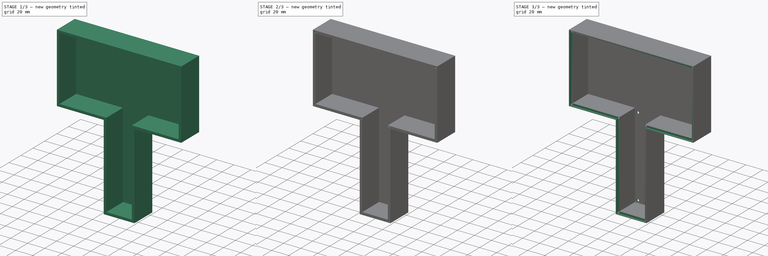
[diagram: build sequence overview — one tinted view per stage of 3, left to right]
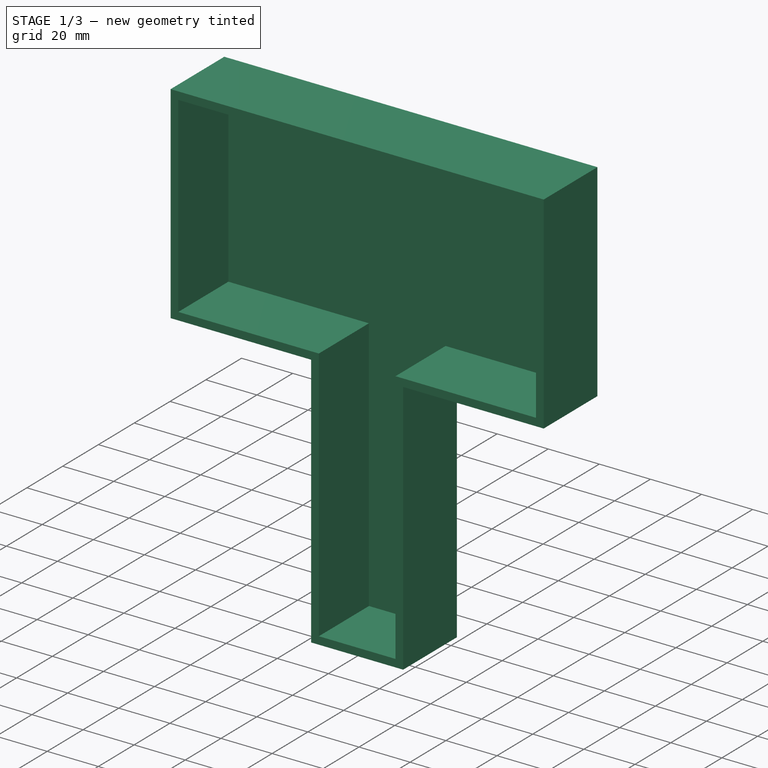
[diagram: stage 1 of 3 — iso view after this stage's code; geometry added in this stage tinted green]
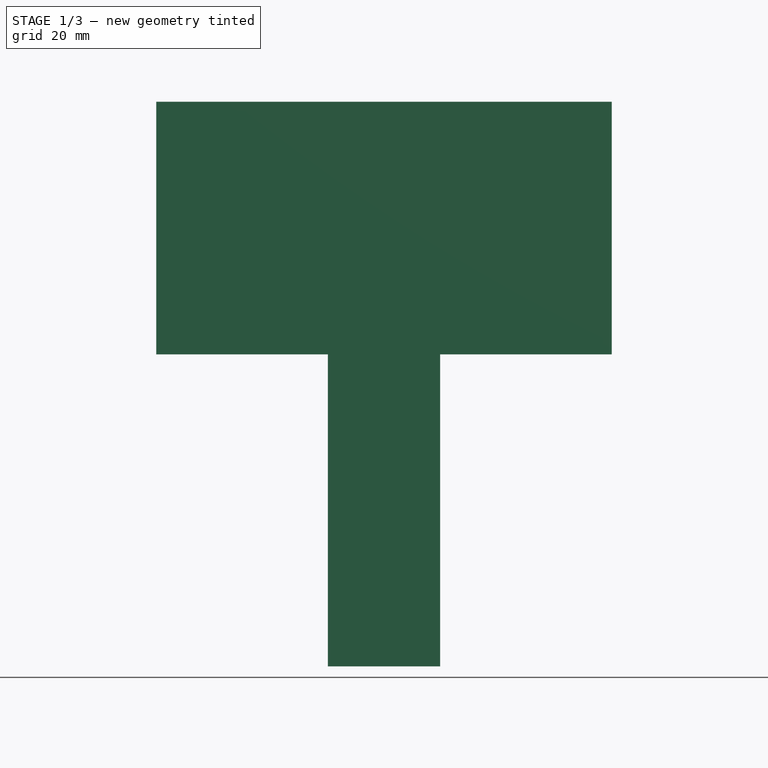
[diagram: stage 1 of 3 — front view after this stage's code; geometry added in this stage tinted green]
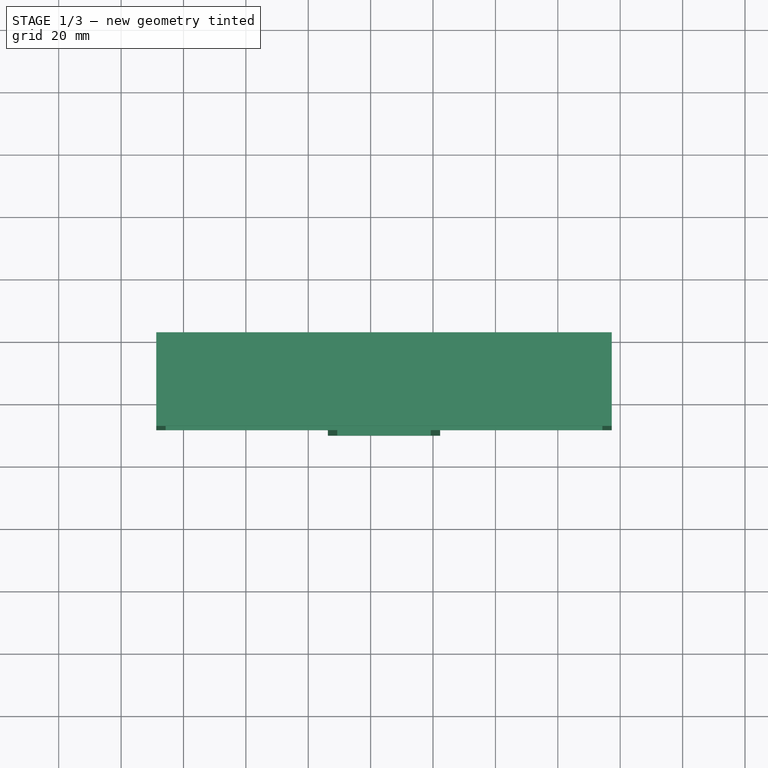
[diagram: stage 1 of 3 — top view after this stage's code; geometry added in this stage tinted green]
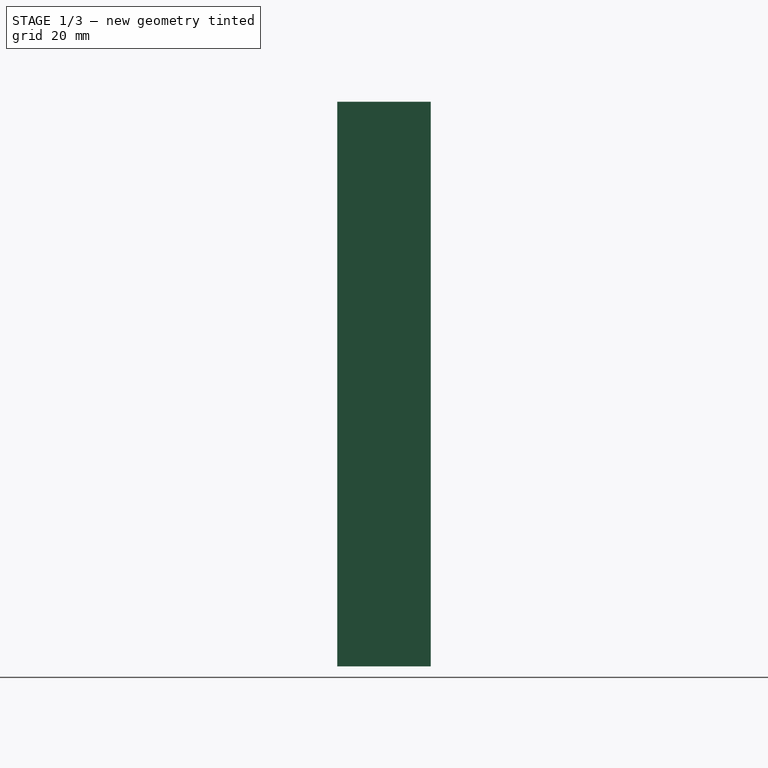
[diagram: stage 1 of 3 — right view after this stage's code; geometry added in this stage tinted green]
FCSTD DOCUMENT  (FreeCAD 0.20R29603 (Git))
Label: FJDI;F
License: All rights reserved
LicenseURL: http://en.wikipedia.org/wiki/All_rights_reserved
objects: Sketcher::SketchObject×5, PartDesign::Pocket×4, PartDesign::Pad×1, PartDesign::Body×1
note: 16 computed .brp shape members not serialized (recipe doc carries the construction recipe); baked Part::Feature solids carry a one-line shape summary decoded from their .brp

FEATURE [Sketcher::SketchObject] Sketch
  FullyConstrained = true
  MapMode = 5
  Placement = pos=(0,0,0) rot=(1,0,0;1.5708rad)
  Support = -> [XZ_Plane]
  sketch-geometry (8):
    g0: LineSegment StartX=-68.72 StartY=55.88 StartZ=0 EndX=-68.72 EndY=-25.12 EndZ=0
    g1: LineSegment StartX=-68.72 StartY=-25.12 StartZ=0 EndX=-13.72 EndY=-25.12 EndZ=0
    g2: LineSegment StartX=-13.72 StartY=-25.12 StartZ=0 EndX=-13.72 EndY=-125.12 EndZ=0
    g3: LineSegment StartX=-13.72 StartY=-125.12 StartZ=0 EndX=22.28 EndY=-125.12 EndZ=0
    g4: LineSegment StartX=22.28 StartY=-125.12 StartZ=0 EndX=22.28 EndY=-25.12 EndZ=0
    g5: LineSegment StartX=22.28 StartY=-25.12 StartZ=0 EndX=77.28 EndY=-25.12 EndZ=0
    g6: LineSegment StartX=77.28 StartY=-25.12 StartZ=0 EndX=77.28 EndY=55.88 EndZ=0
    g7: LineSegment StartX=77.28 StartY=55.88 StartZ=0 EndX=-68.72 EndY=55.88 EndZ=0
  constraints (24):
    c: Vertical(g0)
    c: Coincident(g1,g0)
    c: Horizontal(g1)
    c: Coincident(g2,g1)
    c: Vertical(g2)
    c: Coincident(g3,g2)
    c: Horizontal(g3)
    c: Coincident(g4,g3)
    c: Vertical(g4)
    c: Coincident(g5,g4)
    c: Horizontal(g5)
    c: Coincident(g6,g5)
    c: Vertical(g6)
    c: Coincident(g7,g6)
    c: Coincident(g7,g0)
    c: Horizontal(g7)
    c: DistanceX(g7,g7) = 146
    c: DistanceY(g0,g0) = 81
    c: DistanceY(g6,g6) = 81
    c: DistanceY(g4,g4) = 100
    c: DistanceX(g3,g3) = 36
    c: DistanceX(g1,g1) = 55
    c: DistanceY(g-1,g6) = 55.88
    c: DistanceX(g-1,g5) = 77.28
FEATURE [PartDesign::Pad] Pad
  Direction = (0,-1,2e-16)
  Length = 30
  Length2 = 10
  Placement = pos=(0,0,0) rot=(1,0,0;1.5708rad)
  Profile = -> Sketch
  ReferenceAxis = -> Sketch [N_Axis]
  Type = 0
FEATURE [Sketcher::SketchObject] Sketch001
  ExternalGeometry = -> [Pad]
  FullyConstrained = true
  MapMode = 5
  Placement = pos=(0,-30,6.7e-15) rot=(1,0,0;1.5708rad)
  Support = -> [Pad]
  sketch-geometry (8):
    g0: LineSegment StartX=-65.72 StartY=52.88 StartZ=0 EndX=-65.72 EndY=-22.12 EndZ=0
    g1: LineSegment StartX=-65.72 StartY=-22.12 StartZ=0 EndX=-10.72 EndY=-22.12 EndZ=0
    g2: LineSegment StartX=-10.72 StartY=-22.12 StartZ=0 EndX=-10.72 EndY=-122.12 EndZ=0
    g3: LineSegment StartX=-10.72 StartY=-122.12 StartZ=0 EndX=19.28 EndY=-122.12 EndZ=0
    g4: LineSegment StartX=19.28 StartY=-122.12 StartZ=0 EndX=19.28 EndY=-22.12 EndZ=0
    g5: LineSegment StartX=19.28 StartY=-22.12 StartZ=0 EndX=74.28 EndY=-22.12 EndZ=0
    g6: LineSegment StartX=74.28 StartY=-22.12 StartZ=0 EndX=74.28 EndY=52.88 EndZ=0
    g7: LineSegment StartX=74.28 StartY=52.88 StartZ=0 EndX=-65.72 EndY=52.88 EndZ=0
  constraints (24):
    c: Vertical(g0)
    c: Coincident(g1,g0)
    c: Horizontal(g1)
    c: Coincident(g2,g1)
    c: Vertical(g2)
    c: Coincident(g3,g2)
    c: Horizontal(g3)
    c: Coincident(g4,g3)
    c: Vertical(g4)
    c: Coincident(g5,g4)
    c: Horizontal(g5)
    c: Coincident(g6,g5)
    c: Vertical(g6)
    c: Coincident(g7,g6)
    c: Coincident(g7,g0)
    c: Horizontal(g7)
    c: DistanceX(g6,g-3) = 3
    c: DistanceX(g-3,g0) = 3
    c: DistanceX(g-5,g1) = 3
    c: DistanceX(g4,g-4) = 3
    c: DistanceY(g-6,g3) = 3
    c: DistanceY(g-4,g4) = 3
    c: DistanceY(g-5,g1) = 3
    c: DistanceY(g6,g-3) = 3
FEATURE [Sketcher::SketchObject] Sketch002
  ExternalGeometry = -> [Pad,Sketch001]
  FullyConstrained = true
  MapMode = 5
  Placement = pos=(0,-30,6.7e-15) rot=(1,0,0;1.5708rad)
  Support = -> [Pad]
  sketch-geometry (8):
    g0: Circle CenterX=-11.82 CenterY=-23.22 CenterZ=0 NormalX=0 NormalY=0 NormalZ=1 AngleXU=0 Radius=1
    g1: Circle CenterX=-11.72 CenterY=-123.12 CenterZ=0 NormalX=0 NormalY=0 NormalZ=1 AngleXU=0 Radius=1
    g2: Circle CenterX=20.38 CenterY=-23.22 CenterZ=0 NormalX=0 NormalY=0 NormalZ=1 AngleXU=0 Radius=1
    g3: Circle CenterX=20.28 CenterY=-123.12 CenterZ=0 NormalX=0 NormalY=0 NormalZ=1 AngleXU=0 Radius=1
    g4: Circle CenterX=-66.72 CenterY=-23.12 CenterZ=0 NormalX=0 NormalY=0 NormalZ=1 AngleXU=0 Radius=1
    g5: Circle CenterX=75.28 CenterY=-23.12 CenterZ=0 NormalX=0 NormalY=0 NormalZ=1 AngleXU=0 Radius=1
    g6: Circle CenterX=75.28 CenterY=53.88 CenterZ=0 NormalX=0 NormalY=0 NormalZ=1 AngleXU=0 Radius=1
    g7: Circle CenterX=-66.72 CenterY=53.88 CenterZ=0 NormalX=0 NormalY=0 NormalZ=1 AngleXU=0 Radius=1
  constraints (24):
    c: Diameter(g0) = 2
    c: Diameter(g7) = 2
    c: Diameter(g4) = 2
    c: Diameter(g2) = 2
    c: Diameter(g1) = 2
    c: Diameter(g3) = 2
    c: Diameter(g5) = 2
    c: Diameter(g6) = 2
    c: DistanceY(g1,g-13) = 1
    c: DistanceX(g-7,g1) = 2
    c: DistanceX(g3,g-6) = 2
    c: DistanceY(g3,g-13) = 1
    c: DistanceY(g2,g-12) = 1.1
    c: DistanceX(g-12,g2) = 1.1
    c: DistanceY(g-5,g5) = 2
    c: DistanceY(g6,g-4) = 2
    c: DistanceX(g6,g-4) = 2
    c: DistanceX(g-8,g7) = 2
    c: DistanceY(g7,g-8) = 2
    c: DistanceY(g-8,g4) = 2
    c: DistanceX(g-8,g4) = 2
    c: DistanceX(g5,g-5) = 2
    c: DistanceX(g-7,g0) = 1.9
    c: DistanceY(g-7,g0) = 1.9
FEATURE [PartDesign::Pocket] Pocket
  BaseFeature = -> Pad
  Direction = (0,1,-2e-16)
  Length = 28
  Length2 = 5
  Placement = pos=(0,0,0) rot=(1,0,0;1.5708rad)
  Profile = -> Sketch001
  ReferenceAxis = -> Sketch001 [N_Axis]
  Type = 0
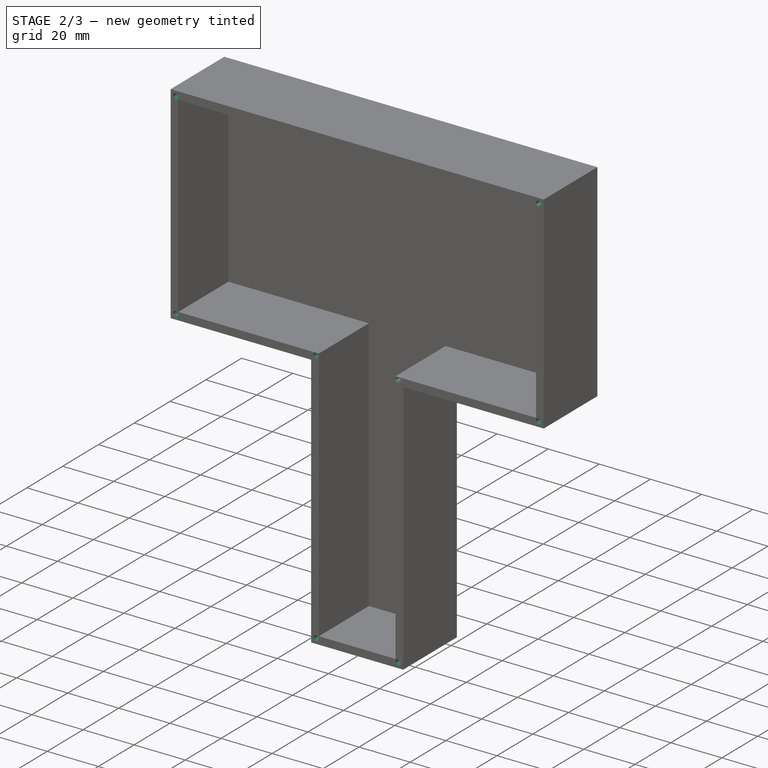
[diagram: stage 2 of 3 — iso view after this stage's code; geometry added in this stage tinted green]
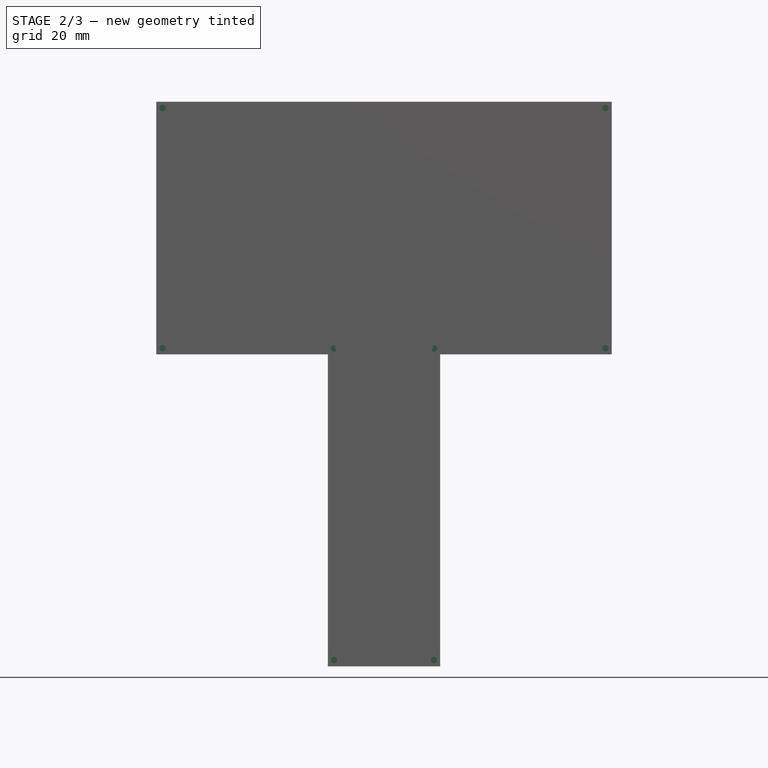
[diagram: stage 2 of 3 — front view after this stage's code; geometry added in this stage tinted green]
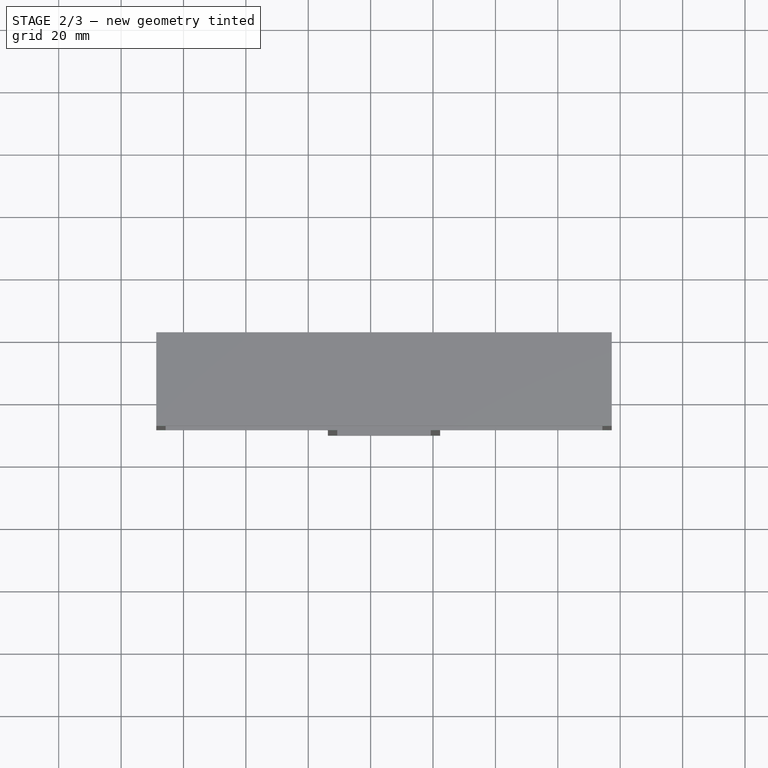
[diagram: stage 2 of 3 — top view after this stage's code; geometry added in this stage tinted green]
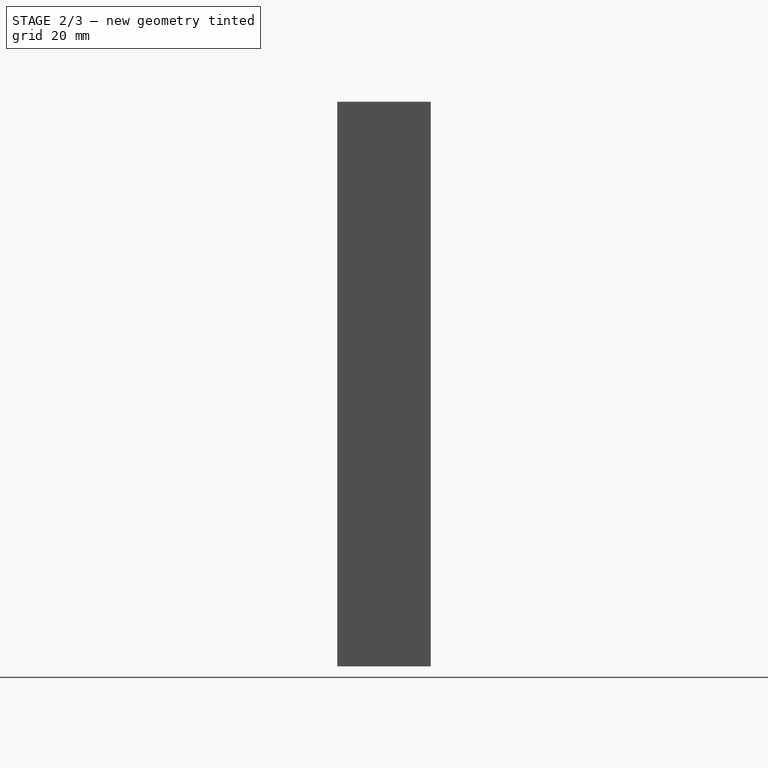
[diagram: stage 2 of 3 — right view after this stage's code; geometry added in this stage tinted green]
FEATURE [PartDesign::Pocket] Pocket001
  BaseFeature = -> Pocket
  Direction = (0,1,-2e-16)
  Length = 5
  Length2 = 5
  Placement = pos=(0,0,0) rot=(1,0,0;1.5708rad)
  Profile = -> Sketch002
  ReferenceAxis = -> Sketch002 [N_Axis]
  Type = 0
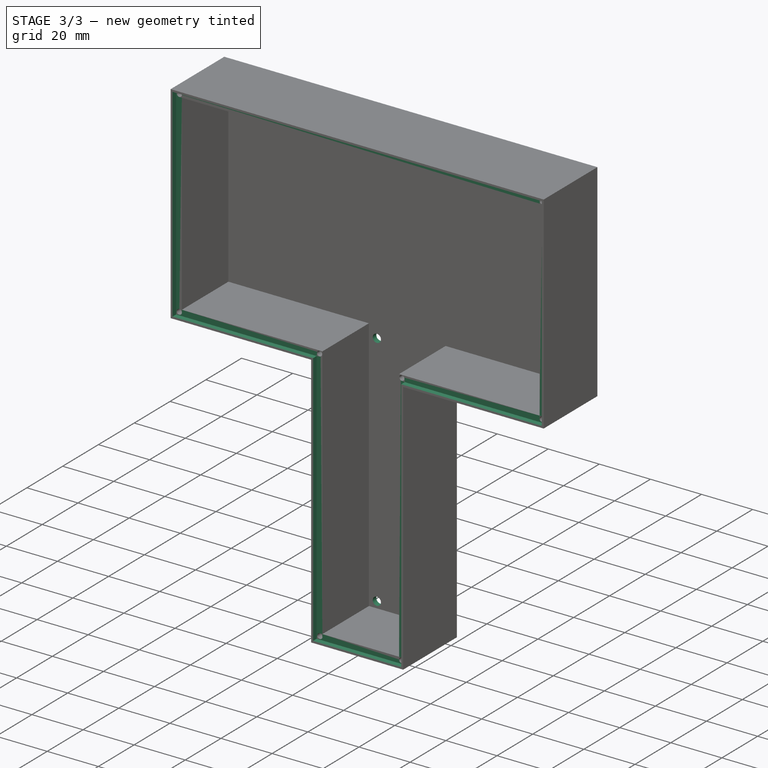
[diagram: stage 3 of 3 — iso view after this stage's code; geometry added in this stage tinted green]
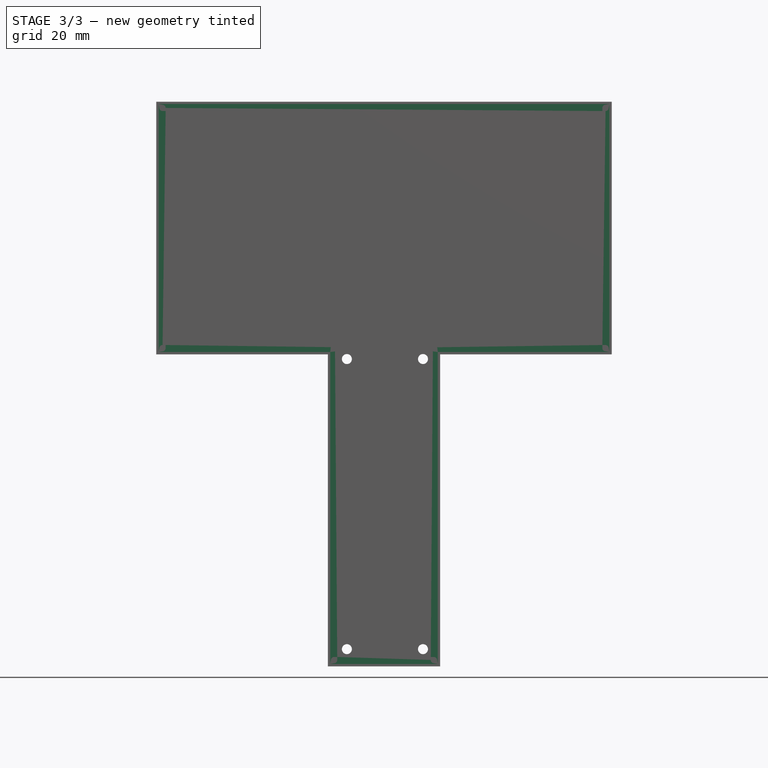
[diagram: stage 3 of 3 — front view after this stage's code; geometry added in this stage tinted green]
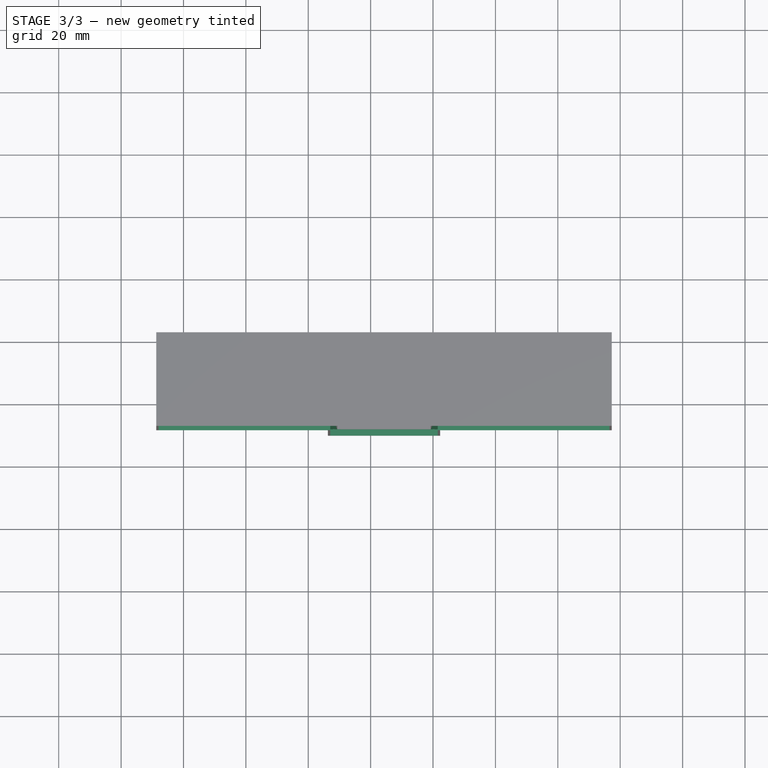
[diagram: stage 3 of 3 — top view after this stage's code; geometry added in this stage tinted green]
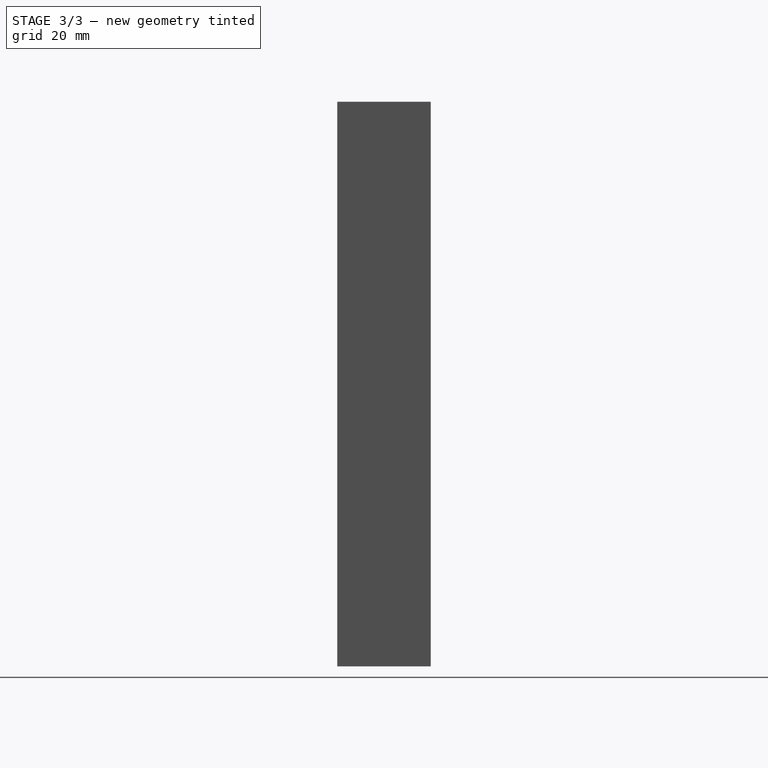
[diagram: stage 3 of 3 — right view after this stage's code; geometry added in this stage tinted green]
FEATURE [Sketcher::SketchObject] Sketch003
  ExternalGeometry = -> [Pocket001]
  FullyConstrained = true
  MapMode = 5
  Placement = pos=(0,-2,4e-16) rot=(1,0,0;1.5708rad)
  Support = -> [Pocket001]
  sketch-geometry (4):
    g0: Circle CenterX=-7.62 CenterY=-119.62 CenterZ=0 NormalX=0 NormalY=0 NormalZ=1 AngleXU=0 Radius=1.6
    g1: Circle CenterX=16.78 CenterY=-119.62 CenterZ=0 NormalX=0 NormalY=0 NormalZ=1 AngleXU=0 Radius=1.6
    g2: Circle CenterX=-7.62 CenterY=-26.62 CenterZ=0 NormalX=0 NormalY=0 NormalZ=1 AngleXU=0 Radius=1.6
    g3: Circle CenterX=16.78 CenterY=-26.62 CenterZ=0 NormalX=0 NormalY=0 NormalZ=1 AngleXU=0 Radius=1.6
  constraints (12):
    c: DistanceX(g3,g1) = 0
    c: DistanceY(g3,g2) = 0
    c: DistanceX(g0,g1) = 24.4
    c: DistanceX(g2,g3) = 24.4
    c: DistanceY(g0,g2) = 93
    c: DistanceY(g1,g3) = 93
    c: Diameter(g3) = 3.2
    c: Diameter(g2) = 3.2
    c: Diameter(g1) = 3.2
    c: Diameter(g0) = 3.2
    c: DistanceX(g1,g-3) = 2.5
    c: DistanceY(g-3,g1) = 2.5
FEATURE [PartDesign::Pocket] Pocket002
  BaseFeature = -> Pocket001
  Direction = (0,1,-2e-16)
  Length = 5
  Length2 = 5
  Placement = pos=(0,0,0) rot=(1,0,0;1.5708rad)
  Profile = -> Sketch003
  ReferenceAxis = -> Sketch003 [N_Axis]
  Type = 0
FEATURE [Sketcher::SketchObject] Sketch004
  ExternalGeometry = -> [Pocket002]
  FullyConstrained = true
  MapMode = 5
  Placement = pos=(0,-30,6.7e-15) rot=(1,0,0;1.5708rad)
  Support = -> [Pocket002]
  sketch-geometry (8):
    g0: LineSegment StartX=-67.97 StartY=55.13 StartZ=0 EndX=-67.97 EndY=-24.37 EndZ=0
    g1: LineSegment StartX=-67.97 StartY=-24.37 StartZ=0 EndX=-12.97 EndY=-24.37 EndZ=0
    g2: LineSegment StartX=-12.97 StartY=-24.37 StartZ=0 EndX=-12.97 EndY=-124.37 EndZ=0
    g3: LineSegment StartX=-12.97 StartY=-124.37 StartZ=0 EndX=21.53 EndY=-124.37 EndZ=0
    g4: LineSegment StartX=21.53 StartY=-124.37 StartZ=0 EndX=21.53 EndY=-24.37 EndZ=0
    g5: LineSegment StartX=21.53 StartY=-24.37 StartZ=0 EndX=76.53 EndY=-24.37 EndZ=0
    g6: LineSegment StartX=76.53 StartY=-24.37 StartZ=0 EndX=76.53 EndY=55.13 EndZ=0
    g7: LineSegment StartX=-67.97 StartY=55.13 StartZ=0 EndX=76.53 EndY=55.13 EndZ=0
  constraints (24):
    c: Vertical(g0)
    c: Coincident(g1,g0)
    c: Horizontal(g1)
    c: Coincident(g2,g1)
    c: Vertical(g2)
    c: Coincident(g3,g2)
    c: Horizontal(g3)
    c: Coincident(g4,g3)
    c: Vertical(g4)
    c: Coincident(g5,g4)
    c: Horizontal(g5)
    c: Coincident(g6,g5)
    c: Vertical(g6)
    c: Coincident(g7,g0)
    c: Horizontal(g7)
    c: DistanceX(g5,g-10) = 0.75
    c: DistanceY(g-10,g5) = 0.75
    c: Coincident(g7,g6)
    c: DistanceY(g6,g-9) = 0.75
    c: DistanceX(g-8,g0) = 0.75
    c: DistanceY(g-4,g0) = 0.75
    c: DistanceX(g-5,g1) = 0.75
    c: DistanceY(g-6,g2) = 0.75
    c: DistanceX(g3,g-7) = 0.75
FEATURE [PartDesign::Pocket] Pocket003
  BaseFeature = -> Pocket002
  Direction = (0,1,-2e-16)
  Length = 2
  Length2 = 5
  Placement = pos=(0,0,0) rot=(1,0,0;1.5708rad)
  Profile = -> Sketch004
  ReferenceAxis = -> Sketch004 [N_Axis]
  Type = 0
FEATURE [PartDesign::Body] Body
  Group = -> [Sketch,Pad,Sketch001,Sketch002,Pocket,Pocket001,Sketch003,Pocket002,Sketch004,Pocket003]
  Origin = -> Origin
  Tip = -> Pocket003
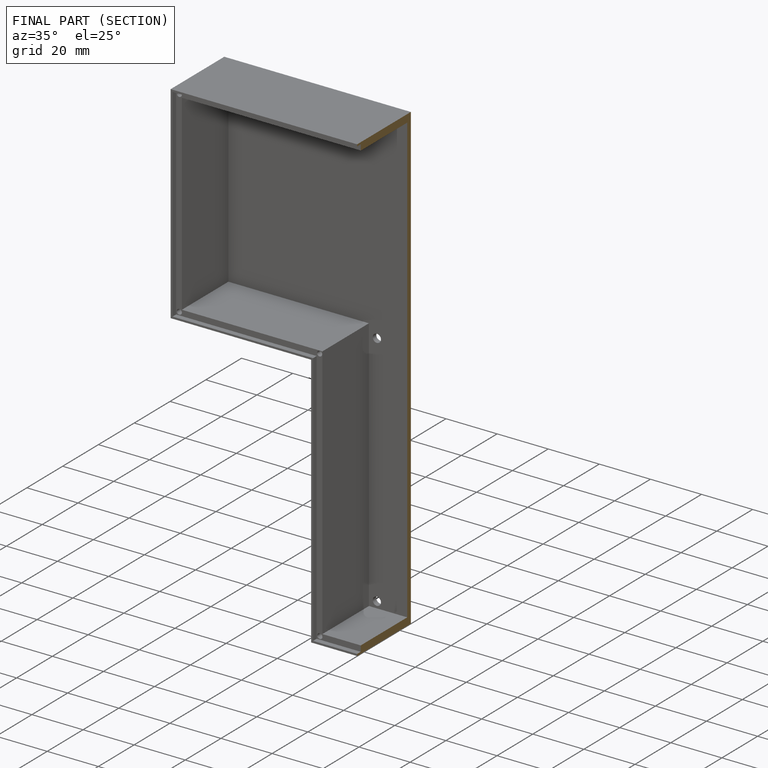
[diagram: finished part — half-section view (interior)]
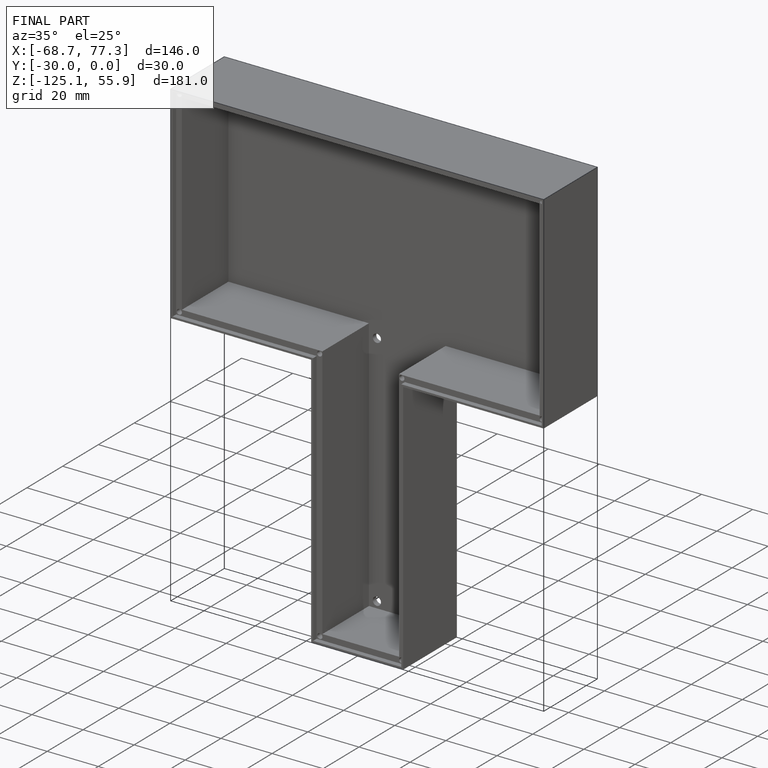
[diagram: finished part — iso view with bounding-box wireframe]
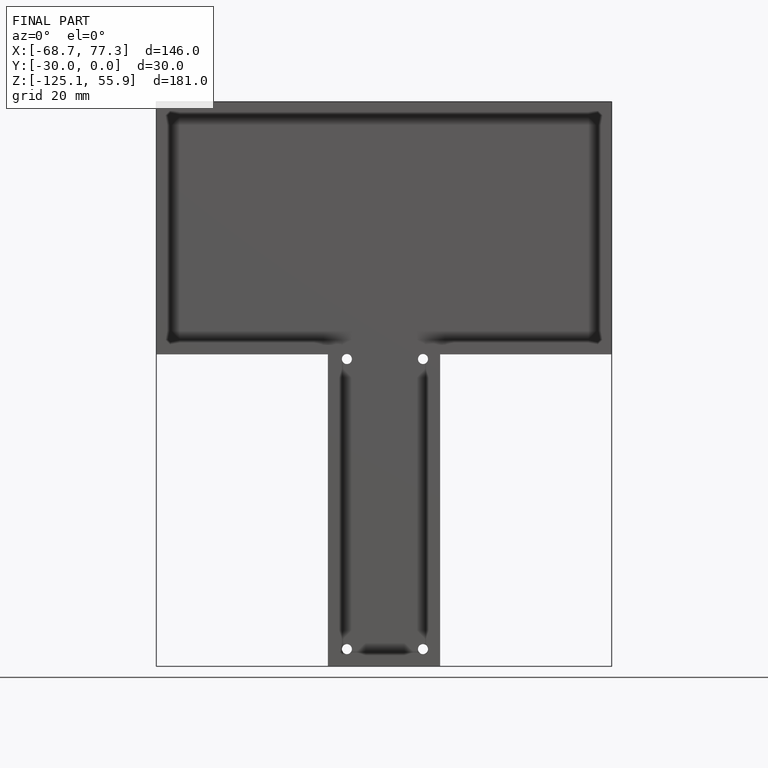
[diagram: finished part — front view with bounding-box wireframe]
